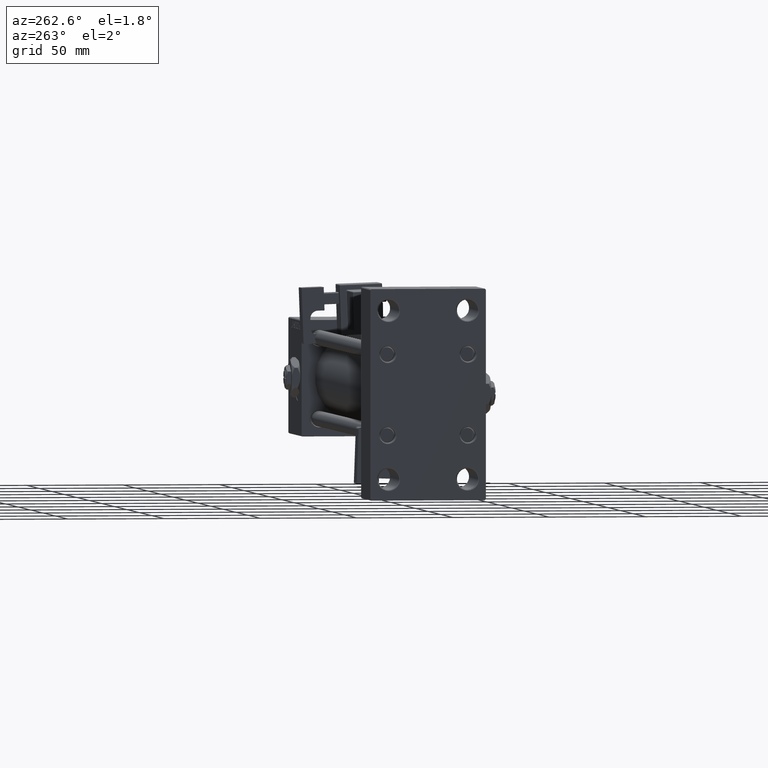
[diagram: clean part render]
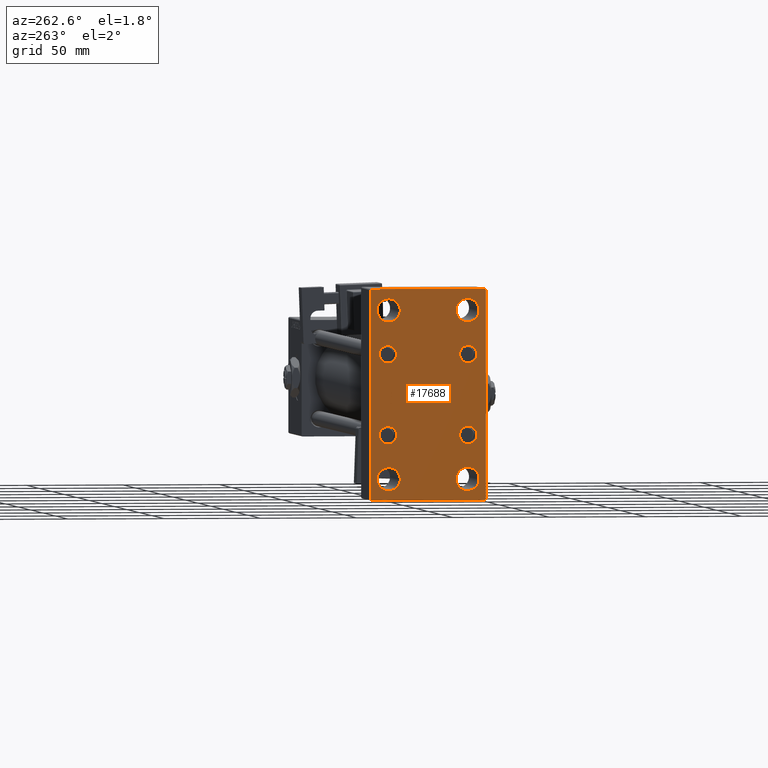
[diagram: same view with one face highlighted and labeled with its STEP entity id]
A machine part, auxiliary view. The second image highlights one B-rep face of the part: STEP entity #17688.
In plain terms, the highlighted planar face has unit normal (-1, 0, 0).
Its self-contained STEP definition (entity closure, byte-faithful):
#295 = CARTESIAN_POINT ( 'NONE',  ( 0.000000000000000000, 20.84999999999999787, -20.85000000000000142 ) ) ;
#1696 = CARTESIAN_POINT ( 'NONE',  ( 0.000000000000000000, 20.84999999999999787, 20.85000000000000142 ) ) ;
#1781 = EDGE_CURVE ( 'NONE', #9464, #48028, #30165, .T. ) ;
#2172 = EDGE_LOOP ( 'NONE', ( #10226, #42483 ) ) ;
#2502 = ORIENTED_EDGE ( 'NONE', *, *, #1781, .T. ) ;
#2564 = DIRECTION ( 'NONE',  ( 0.000000000000000000, 0.000000000000000000, 1.000000000000000000 ) ) ;
#2599 = ORIENTED_EDGE ( 'NONE', *, *, #53003, .T. ) ;
#2660 = CARTESIAN_POINT ( 'NONE',  ( 0.000000000000000000, 20.50000000000000355, -43.50000000000000000 ) ) ;
#2775 = EDGE_CURVE ( 'NONE', #51704, #17017, #45889, .T. ) ;
#2822 = CARTESIAN_POINT ( 'NONE',  ( 0.000000000000000000, -20.49999999999999645, 49.50000000000005684 ) ) ;
#2894 = DIRECTION ( 'NONE',  ( -0.000000000000000000, 0.000000000000000000, 1.000000000000000000 ) ) ;
#2991 = DIRECTION ( 'NONE',  ( 0.000000000000000000, 0.000000000000000000, 1.000000000000000000 ) ) ;
#3174 = AXIS2_PLACEMENT_3D ( 'NONE', #9824, #30345, #51853 ) ;
#3651 = DIRECTION ( 'NONE',  ( 1.000000000000000000, -0.000000000000000000, 0.000000000000000000 ) ) ;
#3680 = EDGE_LOOP ( 'NONE', ( #26714, #25154 ) ) ;
#3701 = AXIS2_PLACEMENT_3D ( 'NONE', #1696, #47562, #38833 ) ;
#3915 = CARTESIAN_POINT ( 'NONE',  ( 0.000000000000000000, -20.84999999999999076, 20.85000000000000497 ) ) ;
#4302 = EDGE_CURVE ( 'NONE', #9546, #17165, #49276, .T. ) ;
#4690 = CARTESIAN_POINT ( 'NONE',  ( 0.000000000000000000, -20.49999999999999645, -37.49999999999993605 ) ) ;
#4757 = CIRCLE ( 'NONE', #11736, 6.000000000000060396 ) ;
#5083 = DIRECTION ( 'NONE',  ( 0.000000000000000000, -0.7071067811865524577, 0.7071067811865426878 ) ) ;
#5377 = CARTESIAN_POINT ( 'NONE',  ( 0.000000000000000000, -29.50000000000000711, 54.50000000000000711 ) ) ;
#5601 = CARTESIAN_POINT ( 'NONE',  ( 0.000000000000000000, 30.00000000000000355, 54.00000000000001421 ) ) ;
#6296 = EDGE_CURVE ( 'NONE', #18947, #6315, #14458, .T. ) ;
#6315 = VERTEX_POINT ( 'NONE', #40803 ) ;
#6384 = EDGE_CURVE ( 'NONE', #20783, #19288, #44112, .T. ) ;
#6423 = CIRCLE ( 'NONE', #36947, 6.000000000000060396 ) ;
#6447 = FACE_BOUND ( 'NONE', #42777, .T. ) ;
#6527 = ORIENTED_EDGE ( 'NONE', *, *, #41165, .F. ) ;
#6593 = AXIS2_PLACEMENT_3D ( 'NONE', #7378, #15579, #24042 ) ;
#7378 = CARTESIAN_POINT ( 'NONE',  ( 0.000000000000000000, 20.84999999999999787, -20.85000000000000142 ) ) ;
#7533 = CARTESIAN_POINT ( 'NONE',  ( 0.000000000000000000, 20.84999999999999787, -16.35000000000001208 ) ) ;
#7889 = EDGE_CURVE ( 'NONE', #19288, #20783, #29541, .T. ) ;
#7923 = DIRECTION ( 'NONE',  ( 1.000000000000000000, -0.000000000000000000, 0.000000000000000000 ) ) ;
#8359 = VECTOR ( 'NONE', #43119, 1000.000000000000000 ) ;
#9090 = VERTEX_POINT ( 'NONE', #10104 ) ;
#9464 = VERTEX_POINT ( 'NONE', #26570 ) ;
#9546 = VERTEX_POINT ( 'NONE', #40218 ) ;
#9824 = CARTESIAN_POINT ( 'NONE',  ( 0.000000000000000000, -20.49999999999999645, 43.50000000000000000 ) ) ;
#9938 = DIRECTION ( 'NONE',  ( 1.000000000000000000, -0.000000000000000000, 0.000000000000000000 ) ) ;
#10001 = DIRECTION ( 'NONE',  ( -1.000000000000000000, 0.000000000000000000, -0.000000000000000000 ) ) ;
#10012 = CARTESIAN_POINT ( 'NONE',  ( -0.000000000000000000, -42.00000000000000000, 42.00000000000000000 ) ) ;
#10104 = CARTESIAN_POINT ( 'NONE',  ( 0.000000000000000000, 29.49999999999997513, -54.49999999999998579 ) ) ;
#10226 = ORIENTED_EDGE ( 'NONE', *, *, #18012, .T. ) ;
#10388 = VECTOR ( 'NONE', #17529, 1000.000000000000000 ) ;
#10415 = VERTEX_POINT ( 'NONE', #25108 ) ;
#10544 = FACE_BOUND ( 'NONE', #3680, .T. ) ;
#10815 = LINE ( 'NONE', #15187, #23157 ) ;
#11587 = CIRCLE ( 'NONE', #3701, 4.499999999999990230 ) ;
#11728 = CARTESIAN_POINT ( 'NONE',  ( 0.000000000000000000, -20.84999999999999076, 20.85000000000000497 ) ) ;
#11736 = AXIS2_PLACEMENT_3D ( 'NONE', #48708, #3651, #23877 ) ;
#11869 = AXIS2_PLACEMENT_3D ( 'NONE', #44883, #39971, #2564 ) ;
#12086 = EDGE_CURVE ( 'NONE', #23522, #32353, #11587, .T. ) ;
#12392 = DIRECTION ( 'NONE',  ( 1.000000000000000000, -0.000000000000000000, 0.000000000000000000 ) ) ;
#12680 = AXIS2_PLACEMENT_3D ( 'NONE', #51432, #9938, #27914 ) ;
#12829 = DIRECTION ( 'NONE',  ( 0.000000000000000000, 0.000000000000000000, 1.000000000000000000 ) ) ;
#13020 = EDGE_CURVE ( 'NONE', #32158, #41339, #40391, .T. ) ;
#13176 = CARTESIAN_POINT ( 'NONE',  ( 0.000000000000000000, -29.99999999999999645, 54.00000000000002132 ) ) ;
#13833 = CARTESIAN_POINT ( 'NONE',  ( 0.000000000000000000, -29.99999999999999645, 54.50000000000000711 ) ) ;
#13844 = ORIENTED_EDGE ( 'NONE', *, *, #20770, .T. ) ;
#14116 = EDGE_CURVE ( 'NONE', #17165, #9546, #6423, .T. ) ;
#14369 = FACE_BOUND ( 'NONE', #39157, .T. ) ;
#14413 = AXIS2_PLACEMENT_3D ( 'NONE', #35391, #10001, #2894 ) ;
#14455 = CIRCLE ( 'NONE', #44973, 4.499999999999990230 ) ;
#14458 = CIRCLE ( 'NONE', #11869, 4.499999999999990230 ) ;
#14502 = CARTESIAN_POINT ( 'NONE',  ( 0.000000000000000000, -20.84999999999999076, -20.85000000000000497 ) ) ;
#14610 = LINE ( 'NONE', #28003, #25199 ) ;
#15187 = CARTESIAN_POINT ( 'NONE',  ( 0.000000000000000000, 41.99999999999997868, -41.99999999999997868 ) ) ;
#15579 = DIRECTION ( 'NONE',  ( 1.000000000000000000, -0.000000000000000000, 0.000000000000000000 ) ) ;
#15842 = CARTESIAN_POINT ( 'NONE',  ( 0.000000000000000000, 20.84999999999999787, 16.35000000000001208 ) ) ;
#16419 = ORIENTED_EDGE ( 'NONE', *, *, #14116, .T. ) ;
#16531 = AXIS2_PLACEMENT_3D ( 'NONE', #14502, #47800, #47254 ) ;
#16961 = DIRECTION ( 'NONE',  ( 0.000000000000000000, 0.000000000000000000, 1.000000000000000000 ) ) ;
#17017 = VERTEX_POINT ( 'NONE', #2822 ) ;
#17165 = VERTEX_POINT ( 'NONE', #53879 ) ;
#17212 = VERTEX_POINT ( 'NONE', #13176 ) ;
#17472 = CARTESIAN_POINT ( 'NONE',  ( 0.000000000000000000, -20.49999999999999645, -43.50000000000000000 ) ) ;
#17505 = CARTESIAN_POINT ( 'NONE',  ( 0.000000000000000000, 30.00000000000000355, 54.50000000000001421 ) ) ;
#17529 = DIRECTION ( 'NONE',  ( 0.000000000000000000, -1.000000000000000000, -2.312964634635742957E-16 ) ) ;
#17688 = ADVANCED_FACE ( 'NONE', ( #46608, #18748, #10544, #6447, #43567, #31864, #14369, #39480, #43295 ), #48497, .T. ) ;
#17696 = EDGE_CURVE ( 'NONE', #31592, #9090, #10815, .T. ) ;
#17790 = LINE ( 'NONE', #21883, #10388 ) ;
#18012 = EDGE_CURVE ( 'NONE', #17017, #51704, #53670, .T. ) ;
#18433 = EDGE_CURVE ( 'NONE', #17212, #18435, #33822, .T. ) ;
#18435 = VERTEX_POINT ( 'NONE', #5377 ) ;
#18748 = FACE_BOUND ( 'NONE', #2172, .T. ) ;
#18784 = EDGE_CURVE ( 'NONE', #40441, #51565, #4757, .T. ) ;
#18792 = VECTOR ( 'NONE', #46890, 1000.000000000000114 ) ;
#18947 = VERTEX_POINT ( 'NONE', #27333 ) ;
#19288 = VERTEX_POINT ( 'NONE', #35603 ) ;
#19349 = CARTESIAN_POINT ( 'NONE',  ( 0.000000000000000000, 20.50000000000000355, -43.50000000000000000 ) ) ;
#20009 = CIRCLE ( 'NONE', #53118, 6.000000000000060396 ) ;
#20083 = CIRCLE ( 'NONE', #45309, 6.000000000000060396 ) ;
#20230 = DIRECTION ( 'NONE',  ( 0.000000000000000000, 0.000000000000000000, 1.000000000000000000 ) ) ;
#20770 = EDGE_CURVE ( 'NONE', #45216, #10415, #50411, .T. ) ;
#20780 = VERTEX_POINT ( 'NONE', #5601 ) ;
#20783 = VERTEX_POINT ( 'NONE', #23355 ) ;
#21314 = DIRECTION ( 'NONE',  ( 1.000000000000000000, -0.000000000000000000, 0.000000000000000000 ) ) ;
#21810 = DIRECTION ( 'NONE',  ( 0.000000000000000000, 0.000000000000000000, 1.000000000000000000 ) ) ;
#21883 = CARTESIAN_POINT ( 'NONE',  ( 0.000000000000000000, 30.00000000000000355, -54.49999999999998579 ) ) ;
#22028 = EDGE_CURVE ( 'NONE', #48028, #9464, #14455, .T. ) ;
#22197 = DIRECTION ( 'NONE',  ( 1.000000000000000000, -0.000000000000000000, 0.000000000000000000 ) ) ;
#22252 = AXIS2_PLACEMENT_3D ( 'NONE', #2660, #45242, #36778 ) ;
#23095 = CARTESIAN_POINT ( 'NONE',  ( 0.000000000000000000, 20.50000000000000355, 49.50000000000005684 ) ) ;
#23157 = VECTOR ( 'NONE', #44123, 1000.000000000000114 ) ;
#23355 = CARTESIAN_POINT ( 'NONE',  ( 0.000000000000000000, -20.84999999999999076, 25.34999999999999432 ) ) ;
#23522 = VERTEX_POINT ( 'NONE', #29948 ) ;
#23877 = DIRECTION ( 'NONE',  ( 0.000000000000000000, 0.000000000000000000, 1.000000000000000000 ) ) ;
#24042 = DIRECTION ( 'NONE',  ( 0.000000000000000000, 0.000000000000000000, 1.000000000000000000 ) ) ;
#24188 = ORIENTED_EDGE ( 'NONE', *, *, #33047, .T. ) ;
#24302 = AXIS2_PLACEMENT_3D ( 'NONE', #11728, #28401, #2991 ) ;
#24551 = EDGE_LOOP ( 'NONE', ( #2599, #26119, #24188, #13844, #6527, #37338, #26030, #35209 ) ) ;
#24573 = CARTESIAN_POINT ( 'NONE',  ( 0.000000000000000000, 20.50000000000000355, 37.49999999999993605 ) ) ;
#24967 = AXIS2_PLACEMENT_3D ( 'NONE', #3915, #12392, #38028 ) ;
#25108 = CARTESIAN_POINT ( 'NONE',  ( 0.000000000000000000, -29.99999999999999645, -53.99999999999996447 ) ) ;
#25154 = ORIENTED_EDGE ( 'NONE', *, *, #29511, .T. ) ;
#25199 = VECTOR ( 'NONE', #27174, 1000.000000000000000 ) ;
#26030 = ORIENTED_EDGE ( 'NONE', *, *, #31420, .F. ) ;
#26119 = ORIENTED_EDGE ( 'NONE', *, *, #17696, .T. ) ;
#26570 = CARTESIAN_POINT ( 'NONE',  ( 0.000000000000000000, 20.84999999999999787, -25.34999999999999076 ) ) ;
#26714 = ORIENTED_EDGE ( 'NONE', *, *, #18784, .T. ) ;
#27174 = DIRECTION ( 'NONE',  ( 0.000000000000000000, -1.000000000000000000, -1.156482317317871478E-16 ) ) ;
#27333 = CARTESIAN_POINT ( 'NONE',  ( 0.000000000000000000, -20.84999999999999076, -25.34999999999999432 ) ) ;
#27671 = CARTESIAN_POINT ( 'NONE',  ( 0.000000000000000000, 30.00000000000000355, -53.99999999999995737 ) ) ;
#27914 = DIRECTION ( 'NONE',  ( 0.000000000000000000, 0.000000000000000000, 1.000000000000000000 ) ) ;
#28003 = CARTESIAN_POINT ( 'NONE',  ( 0.000000000000000000, 30.00000000000000355, 54.50000000000001421 ) ) ;
#28401 = DIRECTION ( 'NONE',  ( 1.000000000000000000, -0.000000000000000000, 0.000000000000000000 ) ) ;
#29256 = VECTOR ( 'NONE', #5083, 1000.000000000000000 ) ;
#29511 = EDGE_CURVE ( 'NONE', #51565, #40441, #20009, .T. ) ;
#29541 = CIRCLE ( 'NONE', #24302, 4.499999999999990230 ) ;
#29948 = CARTESIAN_POINT ( 'NONE',  ( 0.000000000000000000, 20.84999999999999787, 25.34999999999999076 ) ) ;
#30165 = CIRCLE ( 'NONE', #6593, 4.499999999999990230 ) ;
#30345 = DIRECTION ( 'NONE',  ( 1.000000000000000000, -0.000000000000000000, 0.000000000000000000 ) ) ;
#30596 = ORIENTED_EDGE ( 'NONE', *, *, #4302, .T. ) ;
#30676 = DIRECTION ( 'NONE',  ( 0.000000000000000000, 0.000000000000000000, 1.000000000000000000 ) ) ;
#30707 = VECTOR ( 'NONE', #39464, 1000.000000000000000 ) ;
#31420 = EDGE_CURVE ( 'NONE', #53768, #18435, #14610, .T. ) ;
#31592 = VERTEX_POINT ( 'NONE', #27671 ) ;
#31755 = DIRECTION ( 'NONE',  ( 0.000000000000000000, 0.7071067811865474617, -0.7071067811865474617 ) ) ;
#31864 = FACE_BOUND ( 'NONE', #53590, .T. ) ;
#32057 = ORIENTED_EDGE ( 'NONE', *, *, #6296, .T. ) ;
#32158 = VERTEX_POINT ( 'NONE', #24573 ) ;
#32353 = VERTEX_POINT ( 'NONE', #15842 ) ;
#32374 = EDGE_CURVE ( 'NONE', #32353, #23522, #47879, .T. ) ;
#32889 = CARTESIAN_POINT ( 'NONE',  ( 0.000000000000000000, -20.49999999999999645, 37.49999999999993605 ) ) ;
#33047 = EDGE_CURVE ( 'NONE', #9090, #45216, #17790, .T. ) ;
#33822 = LINE ( 'NONE', #10012, #18792 ) ;
#34279 = AXIS2_PLACEMENT_3D ( 'NONE', #51135, #22197, #30676 ) ;
#35200 = EDGE_CURVE ( 'NONE', #6315, #18947, #42662, .T. ) ;
#35209 = ORIENTED_EDGE ( 'NONE', *, *, #43302, .T. ) ;
#35304 = EDGE_CURVE ( 'NONE', #41339, #32158, #20083, .T. ) ;
#35391 = CARTESIAN_POINT ( 'NONE',  ( 0.000000000000000000, 0.000000000000000000, 0.000000000000000000 ) ) ;
#35466 = CARTESIAN_POINT ( 'NONE',  ( 0.000000000000000000, 29.50000000000000355, 54.50000000000001421 ) ) ;
#35603 = CARTESIAN_POINT ( 'NONE',  ( 0.000000000000000000, -20.84999999999999076, 16.35000000000001208 ) ) ;
#35706 = ORIENTED_EDGE ( 'NONE', *, *, #12086, .T. ) ;
#36778 = DIRECTION ( 'NONE',  ( 0.000000000000000000, 0.000000000000000000, 1.000000000000000000 ) ) ;
#36947 = AXIS2_PLACEMENT_3D ( 'NONE', #19349, #39537, #52361 ) ;
#37338 = ORIENTED_EDGE ( 'NONE', *, *, #18433, .T. ) ;
#37575 = CARTESIAN_POINT ( 'NONE',  ( 0.000000000000000000, -41.99999999999978684, -42.00000000000036948 ) ) ;
#38028 = DIRECTION ( 'NONE',  ( 0.000000000000000000, 0.000000000000000000, 1.000000000000000000 ) ) ;
#38234 = EDGE_LOOP ( 'NONE', ( #44724, #40921 ) ) ;
#38625 = VECTOR ( 'NONE', #31755, 1000.000000000000114 ) ;
#38797 = ORIENTED_EDGE ( 'NONE', *, *, #6384, .T. ) ;
#38833 = DIRECTION ( 'NONE',  ( 0.000000000000000000, 0.000000000000000000, 1.000000000000000000 ) ) ;
#39092 = ORIENTED_EDGE ( 'NONE', *, *, #35200, .T. ) ;
#39157 = EDGE_LOOP ( 'NONE', ( #41203, #2502 ) ) ;
#39464 = DIRECTION ( 'NONE',  ( 0.000000000000000000, 0.000000000000000000, -1.000000000000000000 ) ) ;
#39480 = FACE_BOUND ( 'NONE', #43565, .T. ) ;
#39537 = DIRECTION ( 'NONE',  ( 1.000000000000000000, -0.000000000000000000, 0.000000000000000000 ) ) ;
#39733 = CARTESIAN_POINT ( 'NONE',  ( 0.000000000000000000, -29.49999999999998224, -54.50000000000000000 ) ) ;
#39971 = DIRECTION ( 'NONE',  ( 1.000000000000000000, -0.000000000000000000, 0.000000000000000000 ) ) ;
#40058 = AXIS2_PLACEMENT_3D ( 'NONE', #41757, #50737, #21810 ) ;
#40201 = LINE ( 'NONE', #52472, #38625 ) ;
#40218 = CARTESIAN_POINT ( 'NONE',  ( 0.000000000000000000, 20.50000000000000355, -37.49999999999993605 ) ) ;
#40391 = CIRCLE ( 'NONE', #34279, 6.000000000000060396 ) ;
#40441 = VERTEX_POINT ( 'NONE', #4690 ) ;
#40524 = CARTESIAN_POINT ( 'NONE',  ( 0.000000000000000000, -20.49999999999999645, -49.50000000000005684 ) ) ;
#40601 = ORIENTED_EDGE ( 'NONE', *, *, #7889, .T. ) ;
#40803 = CARTESIAN_POINT ( 'NONE',  ( 0.000000000000000000, -20.84999999999999076, -16.35000000000001208 ) ) ;
#40921 = ORIENTED_EDGE ( 'NONE', *, *, #13020, .T. ) ;
#40977 = CARTESIAN_POINT ( 'NONE',  ( 0.000000000000000000, 20.50000000000000355, 43.50000000000000000 ) ) ;
#41165 = EDGE_CURVE ( 'NONE', #17212, #10415, #52021, .T. ) ;
#41203 = ORIENTED_EDGE ( 'NONE', *, *, #22028, .T. ) ;
#41339 = VERTEX_POINT ( 'NONE', #23095 ) ;
#41757 = CARTESIAN_POINT ( 'NONE',  ( 0.000000000000000000, 20.84999999999999787, 20.85000000000000142 ) ) ;
#42483 = ORIENTED_EDGE ( 'NONE', *, *, #2775, .T. ) ;
#42662 = CIRCLE ( 'NONE', #16531, 4.499999999999990230 ) ;
#42777 = EDGE_LOOP ( 'NONE', ( #30596, #16419 ) ) ;
#43119 = DIRECTION ( 'NONE',  ( 0.000000000000000000, 0.000000000000000000, -1.000000000000000000 ) ) ;
#43295 = FACE_OUTER_BOUND ( 'NONE', #24551, .T. ) ;
#43302 = EDGE_CURVE ( 'NONE', #53768, #20780, #40201, .T. ) ;
#43565 = EDGE_LOOP ( 'NONE', ( #35706, #46303 ) ) ;
#43567 = FACE_BOUND ( 'NONE', #48103, .T. ) ;
#44112 = CIRCLE ( 'NONE', #24967, 4.499999999999990230 ) ;
#44123 = DIRECTION ( 'NONE',  ( -0.000000000000000000, -0.7071067811865474617, -0.7071067811865474617 ) ) ;
#44724 = ORIENTED_EDGE ( 'NONE', *, *, #35304, .T. ) ;
#44883 = CARTESIAN_POINT ( 'NONE',  ( 0.000000000000000000, -20.84999999999999076, -20.85000000000000497 ) ) ;
#44973 = AXIS2_PLACEMENT_3D ( 'NONE', #295, #21314, #16961 ) ;
#45216 = VERTEX_POINT ( 'NONE', #39733 ) ;
#45242 = DIRECTION ( 'NONE',  ( 1.000000000000000000, -0.000000000000000000, 0.000000000000000000 ) ) ;
#45309 = AXIS2_PLACEMENT_3D ( 'NONE', #40977, #52432, #20230 ) ;
#45889 = CIRCLE ( 'NONE', #3174, 6.000000000000060396 ) ;
#46303 = ORIENTED_EDGE ( 'NONE', *, *, #32374, .T. ) ;
#46608 = FACE_BOUND ( 'NONE', #38234, .T. ) ;
#46890 = DIRECTION ( 'NONE',  ( -0.000000000000000000, 0.7071067811865474617, 0.7071067811865474617 ) ) ;
#47254 = DIRECTION ( 'NONE',  ( 0.000000000000000000, 0.000000000000000000, 1.000000000000000000 ) ) ;
#47562 = DIRECTION ( 'NONE',  ( 1.000000000000000000, -0.000000000000000000, 0.000000000000000000 ) ) ;
#47800 = DIRECTION ( 'NONE',  ( 1.000000000000000000, -0.000000000000000000, 0.000000000000000000 ) ) ;
#47879 = CIRCLE ( 'NONE', #40058, 4.499999999999990230 ) ;
#48028 = VERTEX_POINT ( 'NONE', #7533 ) ;
#48103 = EDGE_LOOP ( 'NONE', ( #38797, #40601 ) ) ;
#48497 = PLANE ( 'NONE',  #14413 ) ;
#48708 = CARTESIAN_POINT ( 'NONE',  ( 0.000000000000000000, -20.49999999999999645, -43.50000000000000000 ) ) ;
#49276 = CIRCLE ( 'NONE', #22252, 6.000000000000060396 ) ;
#50411 = LINE ( 'NONE', #37575, #29256 ) ;
#50737 = DIRECTION ( 'NONE',  ( 1.000000000000000000, -0.000000000000000000, 0.000000000000000000 ) ) ;
#51135 = CARTESIAN_POINT ( 'NONE',  ( 0.000000000000000000, 20.50000000000000355, 43.50000000000000000 ) ) ;
#51313 = LINE ( 'NONE', #17505, #8359 ) ;
#51432 = CARTESIAN_POINT ( 'NONE',  ( 0.000000000000000000, -20.49999999999999645, 43.50000000000000000 ) ) ;
#51565 = VERTEX_POINT ( 'NONE', #40524 ) ;
#51704 = VERTEX_POINT ( 'NONE', #32889 ) ;
#51853 = DIRECTION ( 'NONE',  ( 0.000000000000000000, 0.000000000000000000, 1.000000000000000000 ) ) ;
#52021 = LINE ( 'NONE', #13833, #30707 ) ;
#52361 = DIRECTION ( 'NONE',  ( 0.000000000000000000, 0.000000000000000000, 1.000000000000000000 ) ) ;
#52432 = DIRECTION ( 'NONE',  ( 1.000000000000000000, -0.000000000000000000, 0.000000000000000000 ) ) ;
#52472 = CARTESIAN_POINT ( 'NONE',  ( 0.000000000000000000, 42.00000000000000711, 42.00000000000000711 ) ) ;
#53003 = EDGE_CURVE ( 'NONE', #20780, #31592, #51313, .T. ) ;
#53118 = AXIS2_PLACEMENT_3D ( 'NONE', #17472, #7923, #12829 ) ;
#53590 = EDGE_LOOP ( 'NONE', ( #39092, #32057 ) ) ;
#53670 = CIRCLE ( 'NONE', #12680, 6.000000000000060396 ) ;
#53768 = VERTEX_POINT ( 'NONE', #35466 ) ;
#53879 = CARTESIAN_POINT ( 'NONE',  ( 0.000000000000000000, 20.50000000000000355, -49.50000000000005684 ) ) ;